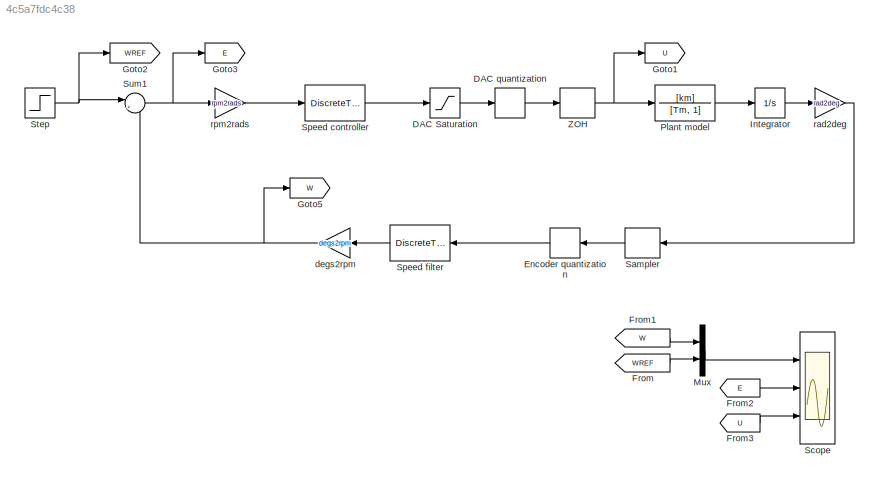
MODEL slx_4c5a7fdc4c38
KIND model
CONFIG AbsTol = auto
CONFIG EnableMultiTasking = on
CONFIG FixedStep = auto
CONFIG MaxStep = 0.001
CONFIG MinStep = auto
CONFIG RelTol = 1e-3
CONFIG SampleTimeConstraint = Unconstrained
CONFIG Solver = ode45
CONFIG SolverName = ode45
CONFIG StartTime = 0.0
CONFIG StopTime = 0.5
BLOCK [Saturate] DAC Saturation
  InputPortMap = u0
  LowerLimit = -10
  Ports = [1, 1]
  UpperLimit = 10
BLOCK [Quantizer] DAC quantization
  QuantizationInterval = qdac
BLOCK [Quantizer] Encoder quantization
  QuantizationInterval = qenc
BLOCK [From] From
  GotoTag = WREF
BLOCK [From] From1
  GotoTag = W
BLOCK [From] From2
  GotoTag = E
BLOCK [From] From3
  GotoTag = U
BLOCK [Goto] Goto1
  GotoTag = U
BLOCK [Goto] Goto2
  GotoTag = WREF
BLOCK [Goto] Goto3
  GotoTag = E
BLOCK [Goto] Goto5
  GotoTag = W
BLOCK [Integrator] Integrator
  Ports = [1, 1]
BLOCK [Mux] Mux
  DisplayOption = bar
  Inputs = 2
  Ports = [2, 1]
BLOCK [TransferFcn] Plant model
  Denominator = [Tm, 1]
  Numerator = [km]
BLOCK [ZeroOrderHold] Sampler
  SampleTime = Ts
BLOCK [Scope] Scope
  Floating = off
  NumInputPorts = 3
  Ports = [3]
  ScopeSpecificationString = Simulink.scopes.TimeScopeBlockCfg('CurrentConfiguration', extmgr.ConfigurationSet(extmgr.Configuration('Core','General UI',true),extmgr.Configuration('Core','Source UI',true),extmgr.Configuration('Sources','WiredSimulink',true,'DataLogging',true,'DataLoggingVariableName','simres','DataLoggingSaveFormat','StructureWithTime','DataLoggingDecimation','1','DataLoggingDecimateData',true),extmgr.Configur...<+3039ch>
BLOCK [DiscreteTransferFcn] Speed controller
  Denominator = denCd
  InputPortMap = u0
  Numerator = numCd
  Ports = [1, 1]
  SampleTime = Ts
BLOCK [DiscreteTransferFcn] Speed filter
  Denominator = denHd
  InputPortMap = u0
  Numerator = numHd
  Ports = [1, 1]
BLOCK [Step] Step
  After = Ar
  SampleTime = 0
  Time = t0r
BLOCK [Sum] Sum1
  IconShape = round
  InputSameDT = off
  Inputs = |+-
  OutDataTypeStr = Inherit: Inherit via internal rule
  Ports = [2, 1]
  SaturateOnIntegerOverflow = off
BLOCK [ZeroOrderHold] ZOH
  SampleTime = Ts
BLOCK [Gain] degs2rpm
  Gain = degs2rpm
  OutDataTypeStr = Inherit: Inherit via internal rule
  ParamDataTypeStr = Inherit: Inherit via internal rule
  SaturateOnIntegerOverflow = off
BLOCK [Gain] rad2deg
  Gain = rad2deg
  OutDataTypeStr = Inherit: Inherit via internal rule
  ParamDataTypeStr = Inherit: Inherit via internal rule
  SaturateOnIntegerOverflow = off
BLOCK [Gain] rpm2rads
  Gain = rpm2rads
  OutDataTypeStr = Inherit: Inherit via internal rule
  ParamDataTypeStr = Inherit: Inherit via internal rule
  SaturateOnIntegerOverflow = off
LINE DAC Saturation:1 -> DAC quantization:1
LINE DAC quantization:1 -> ZOH:1
LINE Encoder quantization:1 -> Speed filter:1
LINE From1:1 -> Mux:1
LINE From2:1 -> Scope:2
LINE From3:1 -> Scope:3
LINE From:1 -> Mux:2
LINE Integrator:1 -> rad2deg:1
LINE Mux:1 -> Scope:1
LINE Plant model:1 -> Integrator:1
LINE Sampler:1 -> Encoder quantization:1
LINE Speed controller:1 -> DAC Saturation:1
LINE Speed filter:1 -> degs2rpm:1
NET Step:1 -> Goto2:1, Sum1:1
NET Sum1:1 -> Goto3:1, rpm2rads:1
NET ZOH:1 -> Goto1:1, Plant model:1
NET degs2rpm:1 -> Goto5:1, Sum1:2
LINE rad2deg:1 -> Sampler:1
LINE rpm2rads:1 -> Speed controller:1
note: NET lines group one-source signal fan-out (src -> all destinations, sorted); 1:1 wires keep LINE
